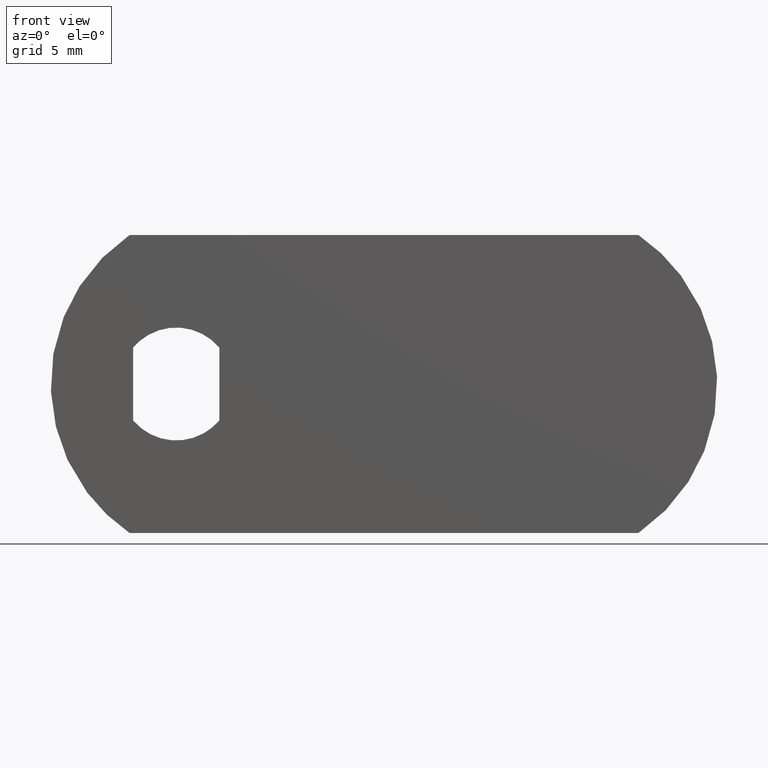
[diagram: clean part render]
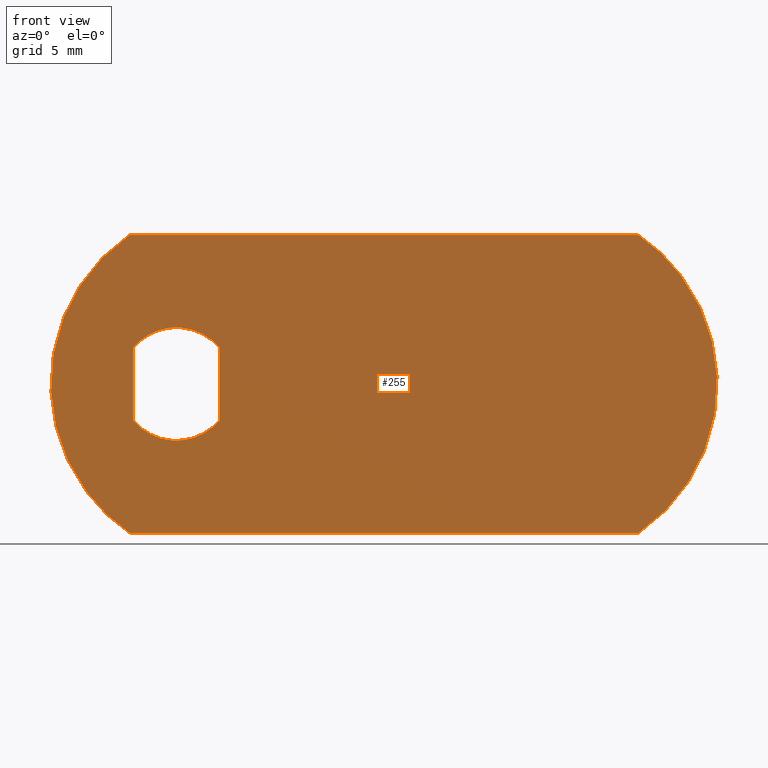
[diagram: same view with one face highlighted and labeled with its STEP entity id]
A machine part, front view. The second image highlights one B-rep face of the part: STEP entity #255.
In plain terms, the highlighted face is a freeform B-spline surface patch.
Its self-contained STEP definition (entity closure, byte-faithful):
#150=CARTESIAN_POINT('',(-10.122874917626749,-3.200000000000000,10.449049963174311));
#151=CARTESIAN_POINT('',(36.622876057565577,-3.200000000000000,10.449049963174311));
#152=CARTESIAN_POINT('',(-10.122874917626749,-3.200000000000000,-10.449050472794029));
#153=CARTESIAN_POINT('',(36.622876057565577,-3.200000000000000,-10.449050472794029));
#154=B_SPLINE_SURFACE_WITH_KNOTS('',1,1,((#150,#152),(#151,#153)),.UNSPECIFIED.,.F.,.F.,.U.,(2,2),(2,2),(0.0,46.745750975192337),(0.0,20.898100435968342),.UNSPECIFIED.);
#155=CARTESIAN_POINT('',(29.480740698407850,-3.200000000000000,-9.500000000000000));
#156=VERTEX_POINT('',#155);
#157=CARTESIAN_POINT('',(29.480740698407850,-3.200000000000000,9.500000000000000));
#158=VERTEX_POINT('',#157);
#159=CARTESIAN_POINT('',(29.480740698407850,-3.200000000000000,-9.500000000000007));
#160=CARTESIAN_POINT('',(34.500000000000000,-3.200000000000001,-6.075945470348388));
#161=CARTESIAN_POINT('',(34.500000000000000,-3.200000000000000,0.0));
#162=CARTESIAN_POINT('',(34.500000000000000,-3.200000000000001,6.075945470348382));
#163=CARTESIAN_POINT('',(29.480740698407860,-3.200000000000000,9.500000000000002));
#171=(BOUNDED_CURVE()B_SPLINE_CURVE(2,(#159,#160,#161,#162,#163),.UNSPECIFIED.,.F.,.U.)B_SPLINE_CURVE_WITH_KNOTS((3,2,3),(0.0,0.500000000000000,1.0),.UNSPECIFIED.)CURVE()GEOMETRIC_REPRESENTATION_ITEM()RATIONAL_B_SPLINE_CURVE((1.0,0.884178338749251,1.0,0.884178338749251,1.0))REPRESENTATION_ITEM(''));
#172=EDGE_CURVE('',#156,#158,#171,.T.);
#173=ORIENTED_EDGE('',*,*,#172,.T.);
#174=CARTESIAN_POINT('',(-2.980740698407840,-3.200000000000000,9.500000000000000));
#175=VERTEX_POINT('',#174);
#176=CARTESIAN_POINT('',(29.480740698407850,-3.200000000000000,9.500000000000000));
#177=CARTESIAN_POINT('',(-2.980740698407840,-3.200000000000000,9.500000000000000));
#178=QUASI_UNIFORM_CURVE('',1,(#176,#177),.UNSPECIFIED.,.F.,.U.);
#179=EDGE_CURVE('',#158,#175,#178,.T.);
#180=ORIENTED_EDGE('',*,*,#179,.T.);
#181=CARTESIAN_POINT('',(-2.980740698407860,-3.200000000000000,-9.500000000000000));
#182=VERTEX_POINT('',#181);
#183=CARTESIAN_POINT('',(-2.980740698407848,-3.200000000000000,9.500000000000007));
#184=CARTESIAN_POINT('',(-8.0,-3.200000000000001,6.075945470348390));
#185=CARTESIAN_POINT('',(-8.0,-3.200000000000000,0.0));
#186=CARTESIAN_POINT('',(-8.0,-3.200000000000001,-6.075945470348378));
#187=CARTESIAN_POINT('',(-2.980740698407861,-3.200000000000000,-9.499999999999998));
#195=(BOUNDED_CURVE()B_SPLINE_CURVE(2,(#183,#184,#185,#186,#187),.UNSPECIFIED.,.F.,.U.)B_SPLINE_CURVE_WITH_KNOTS((3,2,3),(0.0,0.500000000000000,1.0),.UNSPECIFIED.)CURVE()GEOMETRIC_REPRESENTATION_ITEM()RATIONAL_B_SPLINE_CURVE((1.0,0.884178338749251,1.0,0.884178338749251,1.0))REPRESENTATION_ITEM(''));
#196=EDGE_CURVE('',#175,#182,#195,.T.);
#197=ORIENTED_EDGE('',*,*,#196,.T.);
#198=CARTESIAN_POINT('',(-2.980740698407860,-3.200000000000000,-9.500000000000000));
#199=CARTESIAN_POINT('',(29.480740698407850,-3.200000000000000,-9.500000000000000));
#200=QUASI_UNIFORM_CURVE('',1,(#198,#199),.UNSPECIFIED.,.F.,.U.);
#201=EDGE_CURVE('',#182,#156,#200,.T.);
#202=ORIENTED_EDGE('',*,*,#201,.T.);
#203=EDGE_LOOP('',(#173,#180,#197,#202));
#204=FACE_OUTER_BOUND('',#203,.T.);
#205=CARTESIAN_POINT('',(2.750000000000000,-3.200000000000000,2.323252031097775));
#206=VERTEX_POINT('',#205);
#207=CARTESIAN_POINT('',(-2.750000000000000,-3.200000000000000,2.323252031097780));
#208=VERTEX_POINT('',#207);
#209=CARTESIAN_POINT('',(2.750000000000007,-3.200000000000000,2.323252031097780));
#210=CARTESIAN_POINT('',(1.671379159290174,-3.200000000000000,3.600000000000000));
#211=CARTESIAN_POINT('',(0.0,-3.200000000000000,3.600000000000000));
#212=CARTESIAN_POINT('',(-1.671379159290171,-3.200000000000000,3.600000000000000));
#213=CARTESIAN_POINT('',(-2.750000000000004,-3.200000000000000,2.323252031097784));
#221=(BOUNDED_CURVE()B_SPLINE_CURVE(2,(#209,#210,#211,#212,#213),.UNSPECIFIED.,.F.,.U.)B_SPLINE_CURVE_WITH_KNOTS((3,2,3),(0.0,0.500000000000000,1.0),.UNSPECIFIED.)CURVE()GEOMETRIC_REPRESENTATION_ITEM()RATIONAL_B_SPLINE_CURVE((1.0,0.907013722723105,1.0,0.907013722723105,1.0))REPRESENTATION_ITEM(''));
#222=EDGE_CURVE('',#206,#208,#221,.T.);
#223=ORIENTED_EDGE('',*,*,#222,.F.);
#224=CARTESIAN_POINT('',(2.750000000000000,-3.200000000000000,-2.323252031097775));
#225=VERTEX_POINT('',#224);
#226=CARTESIAN_POINT('',(2.750000000000000,-3.200000000000000,-2.323252031097775));
#227=CARTESIAN_POINT('',(2.750000000000000,-3.200000000000000,2.323252031097775));
#228=QUASI_UNIFORM_CURVE('',1,(#226,#227),.UNSPECIFIED.,.F.,.U.);
#229=EDGE_CURVE('',#225,#206,#228,.T.);
#230=ORIENTED_EDGE('',*,*,#229,.F.);
#231=CARTESIAN_POINT('',(-2.750000000000000,-3.200000000000000,-2.323252031097780));
#232=VERTEX_POINT('',#231);
#233=CARTESIAN_POINT('',(-2.750000000000003,-3.200000000000000,-2.323252031097785));
#234=CARTESIAN_POINT('',(-1.671379159290170,-3.199999999999999,-3.600000000000001));
#235=CARTESIAN_POINT('',(0.0,-3.200000000000000,-3.600000000000000));
#236=CARTESIAN_POINT('',(1.671379159290173,-3.199999999999999,-3.600000000000001));
#237=CARTESIAN_POINT('',(2.750000000000006,-3.200000000000000,-2.323252031097781));
#245=(BOUNDED_CURVE()B_SPLINE_CURVE(2,(#233,#234,#235,#236,#237),.UNSPECIFIED.,.F.,.U.)B_SPLINE_CURVE_WITH_KNOTS((3,2,3),(0.0,0.500000000000000,1.0),.UNSPECIFIED.)CURVE()GEOMETRIC_REPRESENTATION_ITEM()RATIONAL_B_SPLINE_CURVE((1.0,0.907013722723105,1.0,0.907013722723105,1.0))REPRESENTATION_ITEM(''));
#246=EDGE_CURVE('',#232,#225,#245,.T.);
#247=ORIENTED_EDGE('',*,*,#246,.F.);
#248=CARTESIAN_POINT('',(-2.750000000000000,-3.200000000000000,2.323252031097780));
#249=CARTESIAN_POINT('',(-2.750000000000000,-3.200000000000000,-2.323252031097780));
#250=QUASI_UNIFORM_CURVE('',1,(#248,#249),.UNSPECIFIED.,.F.,.U.);
#251=EDGE_CURVE('',#208,#232,#250,.T.);
#252=ORIENTED_EDGE('',*,*,#251,.F.);
#253=EDGE_LOOP('',(#223,#230,#247,#252));
#254=FACE_BOUND('',#253,.T.);
#255=ADVANCED_FACE('',(#204,#254),#154,.F.);